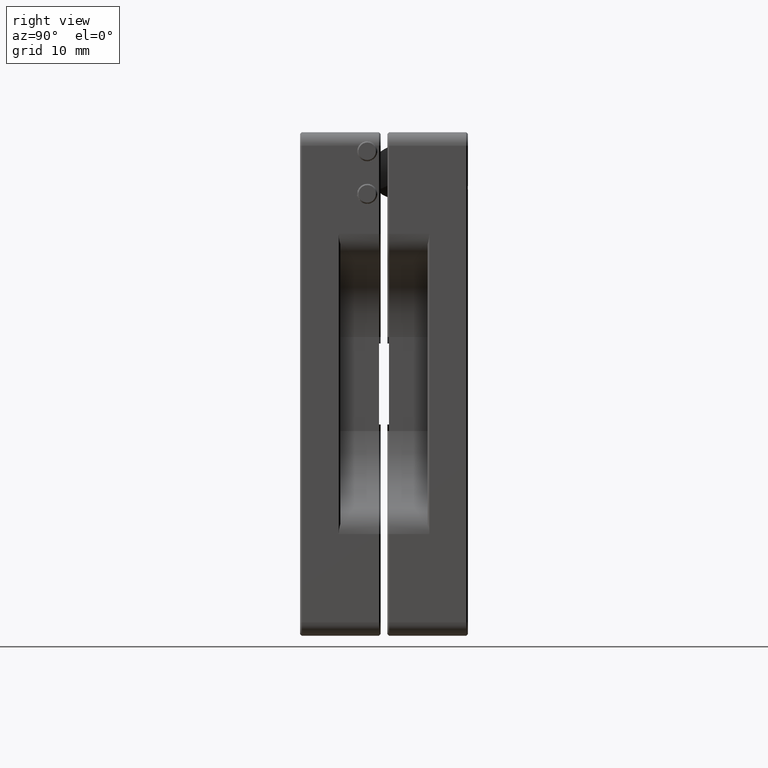
[diagram: clean part render]
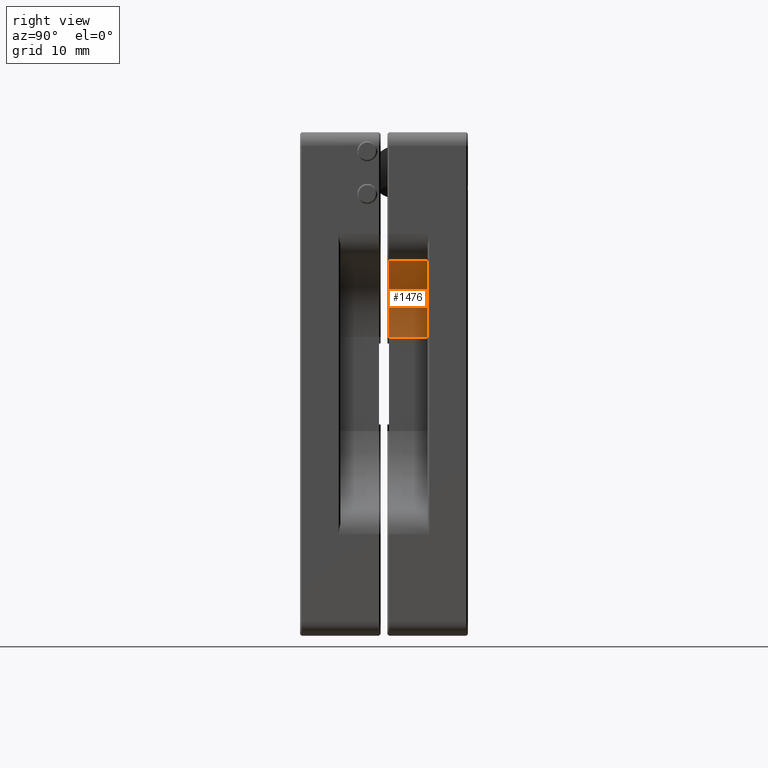
[diagram: same view with one face highlighted and labeled with its STEP entity id]
A machine part, right view. The second image highlights one B-rep face of the part: STEP entity #1476.
In plain terms, the highlighted cylindrical surface (partial cylindrical patch) has radius 14.5 mm, axis along (-0, -1, -0).
Its self-contained STEP definition (entity closure, byte-faithful):
#76 = EDGE_LOOP ( 'NONE', ( #8162, #8416, #8466, #5349 ) ) ;
#957 = CARTESIAN_POINT ( 'NONE',  ( 35.57692307692314415, 12.99103273201165720, 18.42929123895490662 ) ) ;
#1476 = ADVANCED_FACE ( 'NONE', ( #8300 ), #7231, .F. ) ;
#1629 = VECTOR ( 'NONE', #5332, 1000.000000000000000 ) ;
#1789 = CARTESIAN_POINT ( 'NONE',  ( 44.50000000000006395, 12.99103273201165543, 6.999999999999972466 ) ) ;
#1803 = CARTESIAN_POINT ( 'NONE',  ( 44.50000000000006395, 12.99103273201165543, 6.999999999999972466 ) ) ;
#2269 = LINE ( 'NONE', #4597, #1629 ) ;
#2512 = DIRECTION ( 'NONE',  ( 0.0000000000000000000, 0.0000000000000000000, 1.000000000000000000 ) ) ;
#2622 = DIRECTION ( 'NONE',  ( 0.0000000000000000000, -5.981805089575197430E-17, 1.000000000000000000 ) ) ;
#2751 = AXIS2_PLACEMENT_3D ( 'NONE', #3384, #8815, #2622 ) ;
#3068 = DIRECTION ( 'NONE',  ( -2.577839154037636682E-16, -1.000000000000000000, -5.551115123125782702E-17 ) ) ;
#3181 = CARTESIAN_POINT ( 'NONE',  ( 35.57692307692314415, 12.99103273201165720, 18.42929123895490662 ) ) ;
#3384 = CARTESIAN_POINT ( 'NONE',  ( 44.50000000000006395, 7.241032732011655426, 6.999999999999972466 ) ) ;
#3488 = EDGE_CURVE ( 'NONE', #8523, #6426, #8547, .T. ) ;
#3636 = LINE ( 'NONE', #3181, #6506 ) ;
#3849 = CARTESIAN_POINT ( 'NONE',  ( 35.57692307692314415, 7.241032732011656314, 18.42929123895490662 ) ) ;
#4445 = DIRECTION ( 'NONE',  ( 0.0000000000000000000, 0.0000000000000000000, -1.000000000000000000 ) ) ;
#4537 = EDGE_CURVE ( 'NONE', #5890, #6426, #2269, .T. ) ;
#4545 = AXIS2_PLACEMENT_3D ( 'NONE', #1803, #7322, #2512 ) ;
#4597 = CARTESIAN_POINT ( 'NONE',  ( 30.00000000000007105, 12.99103273201165898, 6.999999999999970690 ) ) ;
#4624 = AXIS2_PLACEMENT_3D ( 'NONE', #1789, #3068, #4445 ) ;
#5332 = DIRECTION ( 'NONE',  ( -2.577839154037636682E-16, -1.000000000000000000, -5.551115123125782702E-17 ) ) ;
#5349 = ORIENTED_EDGE ( 'NONE', *, *, #5595, .F. ) ;
#5436 = CIRCLE ( 'NONE', #4624, 14.49999999999999822 ) ;
#5595 = EDGE_CURVE ( 'NONE', #6981, #5890, #5436, .T. ) ;
#5716 = EDGE_CURVE ( 'NONE', #6981, #8523, #3636, .T. ) ;
#5890 = VERTEX_POINT ( 'NONE', #7422 ) ;
#5892 = DIRECTION ( 'NONE',  ( -2.577839154037636682E-16, -1.000000000000000000, -5.551115123125782702E-17 ) ) ;
#6426 = VERTEX_POINT ( 'NONE', #7357 ) ;
#6506 = VECTOR ( 'NONE', #5892, 1000.000000000000000 ) ;
#6981 = VERTEX_POINT ( 'NONE', #957 ) ;
#7231 = CYLINDRICAL_SURFACE ( 'NONE', #4545, 14.49999999999999822 ) ;
#7322 = DIRECTION ( 'NONE',  ( -2.577839154037636682E-16, -1.000000000000000000, -5.551115123125782702E-17 ) ) ;
#7357 = CARTESIAN_POINT ( 'NONE',  ( 30.00000000000007105, 7.241032732011658979, 6.999999999999970690 ) ) ;
#7422 = CARTESIAN_POINT ( 'NONE',  ( 30.00000000000007105, 12.99103273201165898, 6.999999999999970690 ) ) ;
#8162 = ORIENTED_EDGE ( 'NONE', *, *, #5716, .T. ) ;
#8300 = FACE_OUTER_BOUND ( 'NONE', #76, .T. ) ;
#8416 = ORIENTED_EDGE ( 'NONE', *, *, #3488, .T. ) ;
#8466 = ORIENTED_EDGE ( 'NONE', *, *, #4537, .F. ) ;
#8523 = VERTEX_POINT ( 'NONE', #3849 ) ;
#8547 = CIRCLE ( 'NONE', #2751, 14.49999999999999822 ) ;
#8815 = DIRECTION ( 'NONE',  ( -2.577839154037636682E-16, -1.000000000000000000, -5.551115123125782702E-17 ) ) ;